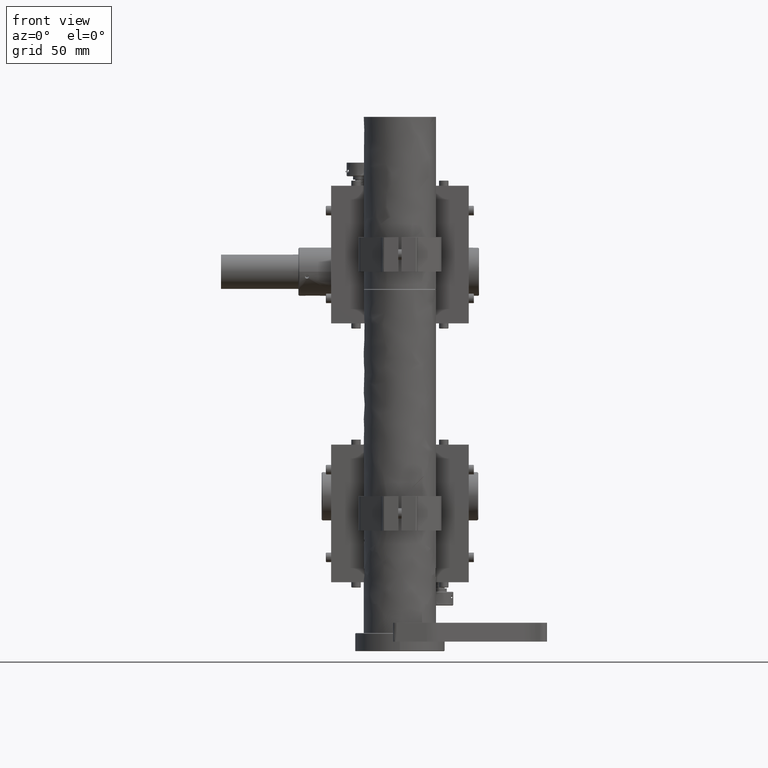
[diagram: clean part render]
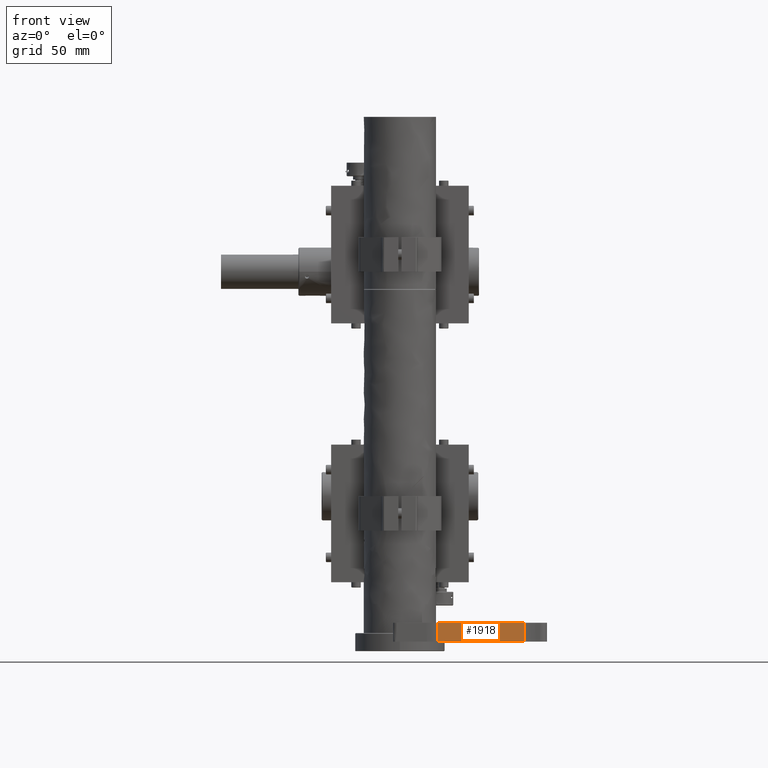
[diagram: same view with one face highlighted and labeled with its STEP entity id]
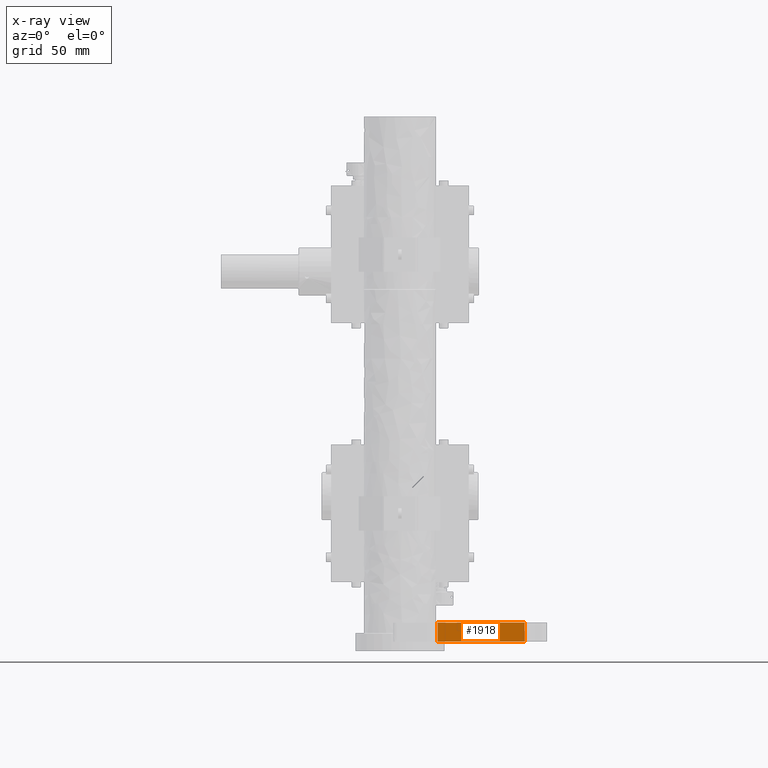
[diagram: x-ray of the same camera — body ghosted, the highlighted face saturated]
A machine part, front view. The second image highlights one B-rep face of the part: STEP entity #1918.
The next image is the same camera in x-ray: the body ghosted, the highlighted face saturated — about 0% of this face is hidden behind the body in this view.
In plain terms, the highlighted face is a freeform B-spline surface patch.
Its self-contained STEP definition (entity closure, byte-faithful):
#1918=ADVANCED_FACE('',(#5004),#106636,.T.);
#5004=FACE_OUTER_BOUND('',#7916,.T.);
#7916=EDGE_LOOP('',(#13042,#13043,#13044,#13045));
#13042=ORIENTED_EDGE('',*,*,#87869,.T.);
#13043=ORIENTED_EDGE('',*,*,#87867,.F.);
#13044=ORIENTED_EDGE('',*,*,#87870,.T.);
#13045=ORIENTED_EDGE('',*,*,#87871,.T.);
#28278=B_SPLINE_CURVE_WITH_KNOTS('',1,(#142439,#142440),.UNSPECIFIED.,.F.,
 .F.,(2,2),(0.,11.),.UNSPECIFIED.);
#28280=B_SPLINE_CURVE_WITH_KNOTS('',1,(#142446,#142447),.UNSPECIFIED.,.F.,
 .F.,(2,2),(0.,53.242640650939),.UNSPECIFIED.);
#28281=B_SPLINE_CURVE_WITH_KNOTS('',1,(#142448,#142449),.UNSPECIFIED.,.F.,
 .F.,(2,2),(0.,53.242640650939),.UNSPECIFIED.);
#28282=B_SPLINE_CURVE_WITH_KNOTS('',1,(#142450,#142451),.UNSPECIFIED.,.F.,
 .F.,(2,2),(0.,11.),.UNSPECIFIED.);
#28283=B_SPLINE_CURVE_WITH_KNOTS('',1,(#142452,#142453),.UNSPECIFIED.,.F.,
 .F.,(2,2),(0.,53.242640650939),.UNSPECIFIED.);
#28284=B_SPLINE_CURVE_WITH_KNOTS('',1,(#142454,#142455),.UNSPECIFIED.,.F.,
 .F.,(2,2),(0.,53.242640650939),.UNSPECIFIED.);
#28285=B_SPLINE_CURVE_WITH_KNOTS('',1,(#142456,#142457),.UNSPECIFIED.,.F.,
 .F.,(2,2),(0.,11.),.UNSPECIFIED.);
#28286=B_SPLINE_CURVE_WITH_KNOTS('',1,(#142458,#142459),.UNSPECIFIED.,.F.,
 .F.,(2,2),(0.,11.),.UNSPECIFIED.);
#28288=B_SPLINE_CURVE_WITH_KNOTS('',1,(#142465,#142466),.UNSPECIFIED.,.F.,
 .F.,(2,2),(0.,11.),.UNSPECIFIED.);
#28468=B_SPLINE_CURVE_WITH_KNOTS('',1,(#143073,#143074),.UNSPECIFIED.,.F.,
 .F.,(2,2),(0.,53.242640650939),.UNSPECIFIED.);
#28502=B_SPLINE_CURVE_WITH_KNOTS('',1,(#143239,#143240),.UNSPECIFIED.,.F.,
 .F.,(2,2),(0.,53.242640650939),.UNSPECIFIED.);
#48763=PCURVE('',#105384,#64259);
#48765=PCURVE('',#106636,#64261);
#48766=PCURVE('',#106636,#64262);
#48767=PCURVE('',#106636,#64263);
#48768=PCURVE('',#106636,#64264);
#48770=PCURVE('',#105385,#64266);
#48934=PCURVE('',#106650,#64430);
#48984=PCURVE('',#106651,#64480);
#64259=DEFINITIONAL_REPRESENTATION('',(#28278),#277684);
#64261=DEFINITIONAL_REPRESENTATION('',(#28281),#277684);
#64262=DEFINITIONAL_REPRESENTATION('',(#28282),#277684);
#64263=DEFINITIONAL_REPRESENTATION('',(#28284),#277684);
#64264=DEFINITIONAL_REPRESENTATION('',(#28286),#277684);
#64266=DEFINITIONAL_REPRESENTATION('',(#28288),#277684);
#64430=DEFINITIONAL_REPRESENTATION('',(#28468),#277684);
#64480=DEFINITIONAL_REPRESENTATION('',(#28502),#277684);
#78560=SURFACE_CURVE('',#97432,(#48763,#48766),.PCURVE_S1.);
#78562=SURFACE_CURVE('',#28280,(#48765,#48934),.PCURVE_S1.);
#78563=SURFACE_CURVE('',#28283,(#48767,#48984),.PCURVE_S1.);
#78564=SURFACE_CURVE('',#28285,(#48768,#48770),.PCURVE_S1.);
#87867=EDGE_CURVE('',#101286,#101287,#78560,.T.);
#87869=EDGE_CURVE('',#101288,#101287,#78562,.T.);
#87870=EDGE_CURVE('',#101286,#101289,#78563,.T.);
#87871=EDGE_CURVE('',#101289,#101288,#78564,.T.);
#97432=(
BOUNDED_CURVE()
B_SPLINE_CURVE(1,(#142437,#142438),.UNSPECIFIED.,.F.,.F.)
B_SPLINE_CURVE_WITH_KNOTS((2,2),(0.,11.),.UNSPECIFIED.)
CURVE()
GEOMETRIC_REPRESENTATION_ITEM()
RATIONAL_B_SPLINE_CURVE((1.,1.))
REPRESENTATION_ITEM('')
);
#101286=VERTEX_POINT('',#133899);
#101287=VERTEX_POINT('',#133900);
#101288=VERTEX_POINT('',#133901);
#101289=VERTEX_POINT('',#133902);
#105384=(
BOUNDED_SURFACE()
B_SPLINE_SURFACE(1,2,((#128621,#128622,#128623,#128624,#128625,#128626,
#128627,#128628,#128629),(#128630,#128631,#128632,#128633,#128634,#128635,
#128636,#128637,#128638)),.UNSPECIFIED.,.F.,.F.,.F.)
B_SPLINE_SURFACE_WITH_KNOTS((2,2),(3,2,2,2,3),(0.,13.4400000000001),(0.,
31.4159265358981,62.8318530717961,94.2477796076942,125.663706143592),
 .UNSPECIFIED.)
GEOMETRIC_REPRESENTATION_ITEM()
RATIONAL_B_SPLINE_SURFACE(((1.,0.707106781186548,1.,0.707106781186548,1.,
0.707106781186548,1.,0.707106781186548,1.),(1.,0.707106781186548,1.,0.707106781186548,
1.,0.707106781186548,1.,0.707106781186548,1.)))
REPRESENTATION_ITEM('')
SURFACE()
);
#105385=(
BOUNDED_SURFACE()
B_SPLINE_SURFACE(2,1,((#128643,#128644),(#128645,#128646),(#128647,#128648),
(#128649,#128650),(#128651,#128652),(#128653,#128654),(#128655,#128656),
(#128657,#128658),(#128659,#128660)),.UNSPECIFIED.,.T.,.F.,.F.)
B_SPLINE_SURFACE_WITH_KNOTS((3,2,2,2,3),(2,2),(0.,31.415926535898,62.831853071796,
94.2477796076939,125.663706143592),(0.,13.4400000000001),.UNSPECIFIED.)
GEOMETRIC_REPRESENTATION_ITEM()
RATIONAL_B_SPLINE_SURFACE(((1.,1.),(0.707106781186548,0.707106781186548),
(1.,1.),(0.707106781186548,0.707106781186548),(1.,1.),(0.707106781186548,
0.707106781186548),(1.,1.),(0.707106781186548,0.707106781186548),(1.,1.)))
REPRESENTATION_ITEM('')
SURFACE()
);
#106636=B_SPLINE_SURFACE_WITH_KNOTS('',1,1,((#128639,#128640),(#128641,
#128642)),.UNSPECIFIED.,.F.,.F.,.F.,(2,2),(2,2),(-64.1950125290998,2.93098878501041E-13),
(-6.30606677987089E-14,13.4400000000003),.UNSPECIFIED.);
#106650=B_SPLINE_SURFACE_WITH_KNOTS('',1,1,((#129019,#129020),(#129021,
#129022)),.UNSPECIFIED.,.F.,.F.,.F.,(2,2),(2,2),(-107.710884326173,-9.57456336436735E-13),
(-8.70414851306123E-14,69.8400000000006),.UNSPECIFIED.);
#106651=B_SPLINE_SURFACE_WITH_KNOTS('',1,1,((#129131,#129132),(#129133,
#129134)),.UNSPECIFIED.,.F.,.F.,.F.,(2,2),(2,2),(-3.37507799486048E-14,
107.64),(-8.97060203897126E-14,69.8400000000007),.UNSPECIFIED.);
#128621=CARTESIAN_POINT('',(278.561050471416,82.9999999999999,-17.2199999999992));
#128622=CARTESIAN_POINT('',(258.561050471416,82.9999999999999,-17.2199999999992));
#128623=CARTESIAN_POINT('',(258.561050471416,62.9999999999999,-17.2199999999993));
#128624=CARTESIAN_POINT('',(258.561050471416,42.9999999999999,-17.2199999999995));
#128625=CARTESIAN_POINT('',(278.561050471416,42.9999999999999,-17.2199999999995));
#128626=CARTESIAN_POINT('',(298.561050471416,42.9999999999999,-17.2199999999995));
#128627=CARTESIAN_POINT('',(298.561050471416,62.9999999999999,-17.2199999999993));
#128628=CARTESIAN_POINT('',(298.561050471416,82.9999999999999,-17.2199999999992));
#128629=CARTESIAN_POINT('',(278.561050471416,82.9999999999999,-17.2199999999992));
#128630=CARTESIAN_POINT('',(278.561050471416,82.9999999999998,-3.7799999999991));
#128631=CARTESIAN_POINT('',(258.561050471416,82.9999999999998,-3.7799999999991));
#128632=CARTESIAN_POINT('',(258.561050471416,62.9999999999998,-3.77999999999924));
#128633=CARTESIAN_POINT('',(258.561050471416,42.9999999999998,-3.77999999999938));
#128634=CARTESIAN_POINT('',(278.561050471416,42.9999999999998,-3.77999999999938));
#128635=CARTESIAN_POINT('',(298.561050471416,42.9999999999998,-3.77999999999938));
#128636=CARTESIAN_POINT('',(298.561050471416,62.9999999999998,-3.77999999999924));
#128637=CARTESIAN_POINT('',(298.561050471416,82.9999999999998,-3.7799999999991));
#128638=CARTESIAN_POINT('',(278.561050471416,82.9999999999998,-3.7799999999991));
#128639=CARTESIAN_POINT('',(216.530311213003,62.703380439863,-3.77999999999919));
#128640=CARTESIAN_POINT('',(216.530311213003,62.703380439863,-17.2199999999995));
#128641=CARTESIAN_POINT('',(277.395438700004,42.2966195601359,-3.77999999999919));
#128642=CARTESIAN_POINT('',(277.395438700004,42.296619560136,-17.2199999999995));
#128643=CARTESIAN_POINT('',(215.364699441591,21.9999999999998,-17.2199999999997));
#128644=CARTESIAN_POINT('',(215.364699441591,21.9999999999997,-3.7799999999996));
#128645=CARTESIAN_POINT('',(235.364699441591,21.9999999999998,-17.2199999999997));
#128646=CARTESIAN_POINT('',(235.364699441591,21.9999999999998,-3.7799999999996));
#128647=CARTESIAN_POINT('',(235.364699441591,41.9999999999998,-17.2199999999995));
#128648=CARTESIAN_POINT('',(235.364699441591,41.9999999999998,-3.77999999999946));
#128649=CARTESIAN_POINT('',(235.364699441591,61.9999999999998,-17.2199999999994));
#128650=CARTESIAN_POINT('',(235.364699441591,61.9999999999998,-3.77999999999932));
#128651=CARTESIAN_POINT('',(215.364699441591,61.9999999999998,-17.2199999999994));
#128652=CARTESIAN_POINT('',(215.364699441591,61.9999999999997,-3.77999999999932));
#128653=CARTESIAN_POINT('',(195.364699441591,61.9999999999998,-17.2199999999994));
#128654=CARTESIAN_POINT('',(195.364699441591,61.9999999999997,-3.77999999999932));
#128655=CARTESIAN_POINT('',(195.364699441591,41.9999999999998,-17.2199999999995));
#128656=CARTESIAN_POINT('',(195.364699441591,41.9999999999997,-3.77999999999946));
#128657=CARTESIAN_POINT('',(195.364699441591,21.9999999999998,-17.2199999999997));
#128658=CARTESIAN_POINT('',(195.364699441591,21.9999999999997,-3.7799999999996));
#128659=CARTESIAN_POINT('',(215.364699441591,21.9999999999998,-17.2199999999997));
#128660=CARTESIAN_POINT('',(215.364699441591,21.9999999999997,-3.7799999999996));
#129019=CARTESIAN_POINT('',(186.66256157279,-1.92000000000084,-4.99999999999966));
#129020=CARTESIAN_POINT('',(186.66256157279,67.9199999999998,-4.99999999999966));
#129021=CARTESIAN_POINT('',(294.373445898962,-1.92000000000084,-4.99999999999966));
#129022=CARTESIAN_POINT('',(294.373445898962,67.9199999999998,-4.99999999999966));
#129131=CARTESIAN_POINT('',(294.367538871781,-1.92000000000084,-15.9999999999997));
#129132=CARTESIAN_POINT('',(294.367538871781,67.92,-15.9999999999997));
#129133=CARTESIAN_POINT('',(186.727538871781,-1.92000000000084,-15.9999999999997));
#129134=CARTESIAN_POINT('',(186.727538871781,67.92,-15.9999999999997));
#133899=CARTESIAN_POINT('',(272.203310181086,44.0374279592478,-15.9999999999995));
#133900=CARTESIAN_POINT('',(272.203310181086,44.0374279592477,-4.99999999999948));
#133901=CARTESIAN_POINT('',(221.722439731921,60.9625720407516,-4.99999999999944));
#133902=CARTESIAN_POINT('',(221.722439731921,60.9625720407516,-15.9999999999994));
#142437=CARTESIAN_POINT('',(272.203310181086,44.0374279592478,-15.9999999999995));
#142438=CARTESIAN_POINT('',(272.203310181086,44.0374279592477,-4.99999999999948));
#142439=CARTESIAN_POINT('',(1.22000000000009,56.0411345958983));
#142440=CARTESIAN_POINT('',(12.2200000000001,56.0411345958983));
#142446=CARTESIAN_POINT('',(221.722439731921,60.9625720407516,-4.99999999999944));
#142447=CARTESIAN_POINT('',(272.203310181086,44.0374279592477,-4.99999999999948));
#142448=CARTESIAN_POINT('',(-58.7188265900194,1.22000000000008));
#142449=CARTESIAN_POINT('',(-5.47618593908017,1.22000000000014));
#142450=CARTESIAN_POINT('',(-5.4761859390802,12.2200000000002));
#142451=CARTESIAN_POINT('',(-5.47618593908017,1.22000000000014));
#142452=CARTESIAN_POINT('',(272.203310181086,44.0374279592478,-15.9999999999995));
#142453=CARTESIAN_POINT('',(221.722439731921,60.9625720407516,-15.9999999999994));
#142454=CARTESIAN_POINT('',(-5.4761859390802,12.2200000000002));
#142455=CARTESIAN_POINT('',(-58.7188265900194,12.2200000000001));
#142456=CARTESIAN_POINT('',(221.722439731921,60.9625720407516,-15.9999999999994));
#142457=CARTESIAN_POINT('',(221.722439731921,60.9625720407516,-4.99999999999944));
#142458=CARTESIAN_POINT('',(-58.7188265900194,12.2200000000001));
#142459=CARTESIAN_POINT('',(-58.7188265900194,1.22000000000008));
#142465=CARTESIAN_POINT('',(56.0411345958981,1.22000000000011));
#142466=CARTESIAN_POINT('',(56.0411345958981,12.2200000000001));
#143073=CARTESIAN_POINT('',(-72.651006167042,62.8825720407524));
#143074=CARTESIAN_POINT('',(-22.170135717877,45.9574279592484));
#143239=CARTESIAN_POINT('',(22.164228690695,45.9574279592486));
#143240=CARTESIAN_POINT('',(72.64509913986,62.8825720407524));
#277684=(
GEOMETRIC_REPRESENTATION_CONTEXT(2)
PARAMETRIC_REPRESENTATION_CONTEXT()
REPRESENTATION_CONTEXT('pspace','')
);